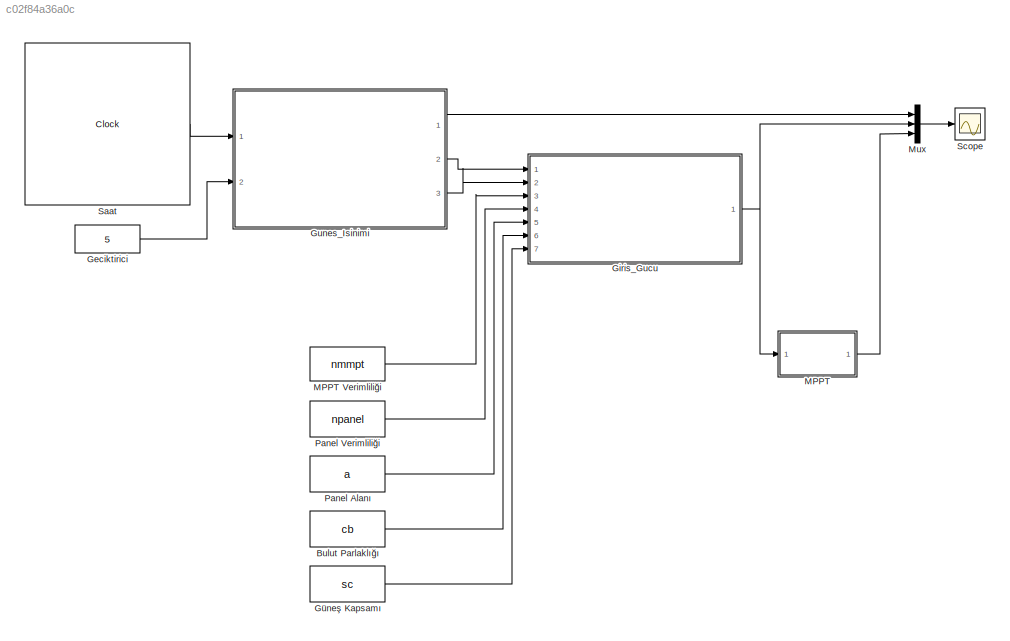
MODEL slx_c02f84a36a0c
KIND model
CONFIG AbsTol = auto
CONFIG EnableMultiTasking = off
CONFIG FixedStep = 0.01
CONFIG MaxStep = auto
CONFIG MinStep = auto
CONFIG RelTol = 1e-3
CONFIG SampleTimeConstraint = Unconstrained
CONFIG Solver = FixedStepAuto
CONFIG SolverName = FixedStepAuto
CONFIG StartTime = 0.0
CONFIG StopTime = 19
WORKSPACE source: mxarray member
WORKSPACE a = 6
WORKSPACE cb = 0.9
WORKSPACE d = 268
WORKSPACE lat = 23.5
WORKSPACE local_meridian = 80
WORKSPACE long = 130
WORKSPACE nmmpt = 0.98
WORKSPACE npanel = 0.25
WORKSPACE sc = 1
WORKSPACE solar_noon = 12.4333333333
BLOCK [Constant] Bulut Parlaklığı
  Value = cb
BLOCK [Constant] Geciktirici
  Value = 5
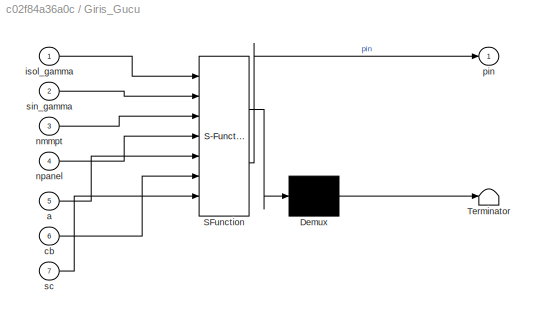
BLOCK [SubSystem] Giris_Gucu
  ErrorFcn = Stateflow.Translate.translate
  PermitHierarchicalResolution = ExplicitOnly
  Ports = [7, 1]
  RequestExecContextInheritance = off
  SFBlockType = MATLAB Function
  TreatAsAtomicUnit = on
BLOCK [Demux] Giris_Gucu/ Demux 
  Outputs = 1
  Ports = [1, 1]
BLOCK [S-Function] Giris_Gucu/ SFunction 
  EnableBusSupport = on
  FunctionName = sf_sfun
  PortCounts = [7 2]
  Ports = [7, 2]
  SFcnIsStateOwnerBlock = off
  SFunctionDeploymentMode = off
  Tag = Stateflow S-Function 1
BLOCK [Terminator] Giris_Gucu/ Terminator 
BLOCK [Inport] Giris_Gucu/a
  Port = 5
BLOCK [Inport] Giris_Gucu/cb
  Port = 6
BLOCK [Inport] Giris_Gucu/isol_gamma
BLOCK [Inport] Giris_Gucu/nmmpt
  Port = 3
BLOCK [Inport] Giris_Gucu/npanel
  Port = 4
BLOCK [Outport] Giris_Gucu/pin
BLOCK [Inport] Giris_Gucu/sc
  Port = 7
BLOCK [Inport] Giris_Gucu/sin_gamma
  Port = 2
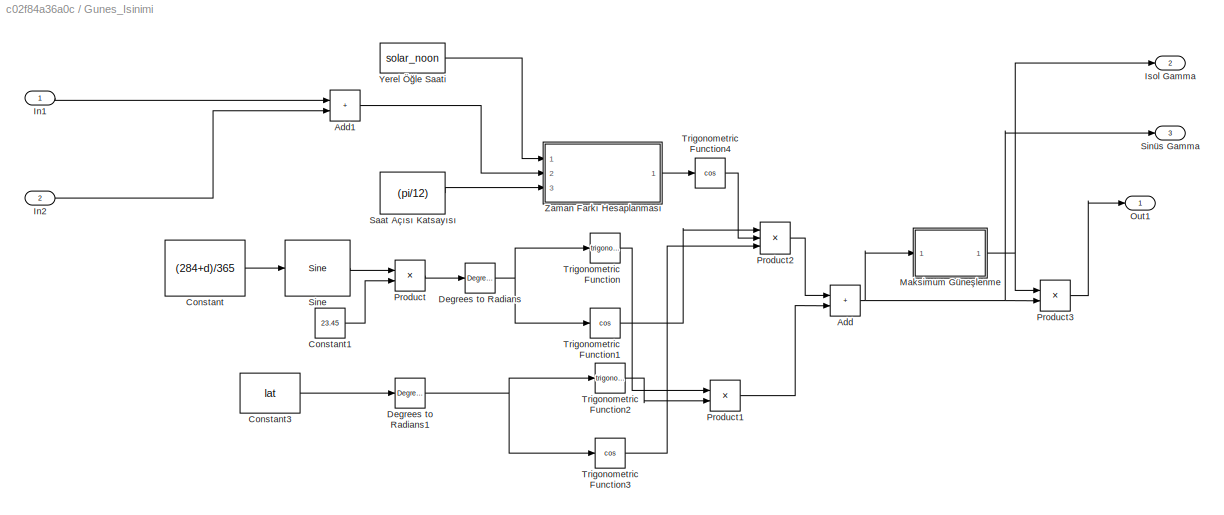
BLOCK [SubSystem] Gunes_Isinimi
  Ports = [2, 3]
  RequestExecContextInheritance = off
BLOCK [Sum] Gunes_Isinimi/Add
  IconShape = rectangular
  Ports = [2, 1]
BLOCK [Sum] Gunes_Isinimi/Add1
  IconShape = rectangular
  Ports = [2, 1]
BLOCK [Constant] Gunes_Isinimi/Constant
  Value = (284+d)/365
BLOCK [Constant] Gunes_Isinimi/Constant1
  Value = 23.45
BLOCK [Constant] Gunes_Isinimi/Constant3
  Value = lat
BLOCK [Reference] Gunes_Isinimi/Degrees to Radians  REF=simulink_extras/Transformations/Degrees to
Radians
  Ports = [1, 1]
  SourceBlock = simulink_extras/Transformations/Degrees to\nRadians
  SourceProductBaseCode = SL
  SourceType = DegreesToRadians
BLOCK [Reference] Gunes_Isinimi/Degrees to Radians1  REF=simulink_extras/Transformations/Degrees to
Radians
  Ports = [1, 1]
  SourceBlock = simulink_extras/Transformations/Degrees to\nRadians
  SourceProductBaseCode = SL
  SourceType = DegreesToRadians
BLOCK [Inport] Gunes_Isinimi/In1
BLOCK [Inport] Gunes_Isinimi/In2
  Port = 2
BLOCK [Outport] Gunes_Isinimi/Isol Gamma
  Port = 2
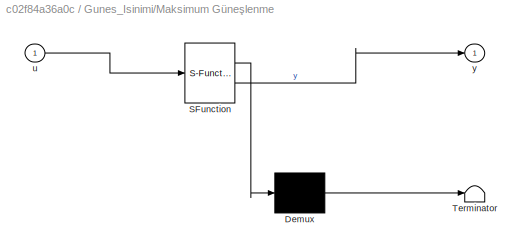
BLOCK [SubSystem] Gunes_Isinimi/Maksimum Güneşlenme
  ErrorFcn = Stateflow.Translate.translate
  PermitHierarchicalResolution = ExplicitOnly
  Ports = [1, 1]
  RequestExecContextInheritance = off
  SFBlockType = MATLAB Function
  TreatAsAtomicUnit = on
BLOCK [Demux] Gunes_Isinimi/Maksimum Güneşlenme/ Demux 
  Outputs = 1
  Ports = [1, 1]
BLOCK [S-Function] Gunes_Isinimi/Maksimum Güneşlenme/ SFunction 
  EnableBusSupport = on
  FunctionName = sf_sfun
  PortCounts = [1 2]
  Ports = [1, 2]
  SFcnIsStateOwnerBlock = off
  SFunctionDeploymentMode = off
  Tag = Stateflow S-Function 4
BLOCK [Terminator] Gunes_Isinimi/Maksimum Güneşlenme/ Terminator 
BLOCK [Inport] Gunes_Isinimi/Maksimum Güneşlenme/u
BLOCK [Outport] Gunes_Isinimi/Maksimum Güneşlenme/y
BLOCK [Outport] Gunes_Isinimi/Out1
BLOCK [Product] Gunes_Isinimi/Product
  Ports = [2, 1]
BLOCK [Product] Gunes_Isinimi/Product1
  Ports = [2, 1]
BLOCK [Product] Gunes_Isinimi/Product2
  Inputs = 3
  Ports = [3, 1]
BLOCK [Product] Gunes_Isinimi/Product3
  Ports = [2, 1]
BLOCK [Constant] Gunes_Isinimi/Saat Açısı Katsayısı
  Value = (pi/12)
BLOCK [Reference] Gunes_Isinimi/Sine  REF=simulink/Lookup
Tables/Sine
  Ports = [1, 1]
  SourceBlock = simulink/Lookup\nTables/Sine
  SourceProductBaseCode = SL
  SourceType = Sine and Cosine
BLOCK [Outport] Gunes_Isinimi/Sinüs Gamma
  Port = 3
BLOCK [Trigonometry] Gunes_Isinimi/Trigonometric Function
  Ports = [1, 1]
BLOCK [Trigonometry] Gunes_Isinimi/Trigonometric Function1
  Operator = cos
  Ports = [1, 1]
BLOCK [Trigonometry] Gunes_Isinimi/Trigonometric Function2
  Ports = [1, 1]
BLOCK [Trigonometry] Gunes_Isinimi/Trigonometric Function3
  Operator = cos
  Ports = [1, 1]
BLOCK [Trigonometry] Gunes_Isinimi/Trigonometric Function4
  Operator = cos
  Ports = [1, 1]
BLOCK [Constant] Gunes_Isinimi/Yerel Öğle Saati
  Value = solar_noon
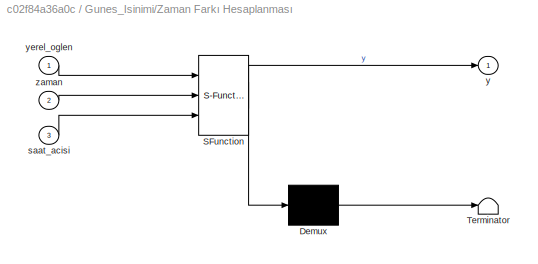
BLOCK [SubSystem] Gunes_Isinimi/Zaman Farkı Hesaplanması
  ErrorFcn = Stateflow.Translate.translate
  PermitHierarchicalResolution = ExplicitOnly
  Ports = [3, 1]
  RequestExecContextInheritance = off
  SFBlockType = MATLAB Function
  TreatAsAtomicUnit = on
BLOCK [Demux] Gunes_Isinimi/Zaman Farkı Hesaplanması/ Demux 
  Outputs = 1
  Ports = [1, 1]
BLOCK [S-Function] Gunes_Isinimi/Zaman Farkı Hesaplanması/ SFunction 
  EnableBusSupport = on
  FunctionName = sf_sfun
  PortCounts = [3 2]
  Ports = [3, 2]
  SFcnIsStateOwnerBlock = off
  SFunctionDeploymentMode = off
  Tag = Stateflow S-Function 2
BLOCK [Terminator] Gunes_Isinimi/Zaman Farkı Hesaplanması/ Terminator 
BLOCK [Inport] Gunes_Isinimi/Zaman Farkı Hesaplanması/saat_acisi
  Port = 3
BLOCK [Outport] Gunes_Isinimi/Zaman Farkı Hesaplanması/y
BLOCK [Inport] Gunes_Isinimi/Zaman Farkı Hesaplanması/yerel_oglen
BLOCK [Inport] Gunes_Isinimi/Zaman Farkı Hesaplanması/zaman
  Port = 2
BLOCK [Constant] Güneş Kapsamı
  Value = sc
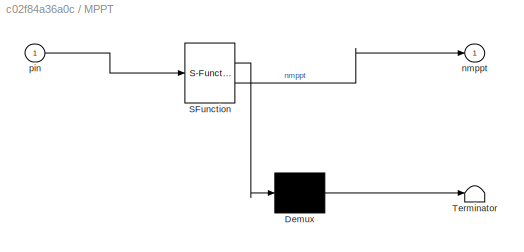
BLOCK [SubSystem] MPPT
  ErrorFcn = Stateflow.Translate.translate
  PermitHierarchicalResolution = ExplicitOnly
  Ports = [1, 1]
  RequestExecContextInheritance = off
  SFBlockType = MATLAB Function
  TreatAsAtomicUnit = on
BLOCK [Constant] MPPT Verimliliği
  Value = nmmpt
BLOCK [Demux] MPPT/ Demux 
  Outputs = 1
  Ports = [1, 1]
BLOCK [S-Function] MPPT/ SFunction 
  EnableBusSupport = on
  FunctionName = sf_sfun
  PortCounts = [1 2]
  Ports = [1, 2]
  SFcnIsStateOwnerBlock = off
  SFunctionDeploymentMode = off
  Tag = Stateflow S-Function 3
BLOCK [Terminator] MPPT/ Terminator 
BLOCK [Outport] MPPT/nmppt
BLOCK [Inport] MPPT/pin
BLOCK [Mux] Mux
  DisplayOption = bar
  Inputs = 3
  Ports = [3, 1]
BLOCK [Constant] Panel Alanı
  Value = a
BLOCK [Constant] Panel Verimliliği
  Value = npanel
BLOCK [Clock] Saat
  Decimation = 5
BLOCK [Scope] Scope
  Floating = off
  NumInputPorts = 1
  Ports = [1]
  ScopeSpecificationString = Simulink.scopes.TimeScopeBlockCfg('CurrentConfiguration', extmgr.ConfigurationSet(extmgr.Configuration('Core','General UI',true),extmgr.Configuration('Core','Source UI',true),extmgr.Configuration('Sources','WiredSimulink',true),extmgr.Configuration('Visuals','Time Domain',true,'SerializedDisplays',{struct('MinYLimReal','-150.34833','MaxYLimReal','1353.13496','YLabelReal','','MinYLimMag',' 0.00000'...<+1503ch>
LINE Bulut Parlaklığı:1 -> Giris_Gucu:6
LINE Geciktirici:1 -> Gunes_Isinimi:2
NET Giris_Gucu:1 -> MPPT:1, Mux:2
LINE Gunes_Isinimi/Add1:1 -> Gunes_Isinimi/Zaman Farkı Hesaplanması:2
NET Gunes_Isinimi/Add:1 -> Gunes_Isinimi/Maksimum Güneşlenme:1, Gunes_Isinimi/Product3:2, Gunes_Isinimi/Sinüs Gamma:1
LINE Gunes_Isinimi/Constant1:1 -> Gunes_Isinimi/Product:2
LINE Gunes_Isinimi/Constant3:1 -> Gunes_Isinimi/Degrees to Radians1:1
LINE Gunes_Isinimi/Constant:1 -> Gunes_Isinimi/Sine:1
NET Gunes_Isinimi/Degrees to Radians1:1 -> Gunes_Isinimi/Trigonometric Function2:1, Gunes_Isinimi/Trigonometric Function3:1
NET Gunes_Isinimi/Degrees to Radians:1 -> Gunes_Isinimi/Trigonometric Function1:1, Gunes_Isinimi/Trigonometric Function:1
LINE Gunes_Isinimi/In1:1 -> Gunes_Isinimi/Add1:1
LINE Gunes_Isinimi/In2:1 -> Gunes_Isinimi/Add1:2
NET Gunes_Isinimi/Maksimum Güneşlenme:1 -> Gunes_Isinimi/Isol Gamma:1, Gunes_Isinimi/Product3:1
LINE Gunes_Isinimi/Product1:1 -> Gunes_Isinimi/Add:2
LINE Gunes_Isinimi/Product2:1 -> Gunes_Isinimi/Add:1
LINE Gunes_Isinimi/Product3:1 -> Gunes_Isinimi/Out1:1
LINE Gunes_Isinimi/Product:1 -> Gunes_Isinimi/Degrees to Radians:1
LINE Gunes_Isinimi/Saat Açısı Katsayısı:1 -> Gunes_Isinimi/Zaman Farkı Hesaplanması:3
LINE Gunes_Isinimi/Sine:1 -> Gunes_Isinimi/Product:1
LINE Gunes_Isinimi/Trigonometric Function1:1 -> Gunes_Isinimi/Product2:1
LINE Gunes_Isinimi/Trigonometric Function2:1 -> Gunes_Isinimi/Product1:2
LINE Gunes_Isinimi/Trigonometric Function3:1 -> Gunes_Isinimi/Product2:3
LINE Gunes_Isinimi/Trigonometric Function4:1 -> Gunes_Isinimi/Product2:2
LINE Gunes_Isinimi/Trigonometric Function:1 -> Gunes_Isinimi/Product1:1
LINE Gunes_Isinimi/Yerel Öğle Saati:1 -> Gunes_Isinimi/Zaman Farkı Hesaplanması:1
LINE Gunes_Isinimi/Zaman Farkı Hesaplanması:1 -> Gunes_Isinimi/Trigonometric Function4:1
LINE Gunes_Isinimi:1 -> Mux:1
LINE Gunes_Isinimi:2 -> Giris_Gucu:1
LINE Gunes_Isinimi:3 -> Giris_Gucu:2
LINE Güneş Kapsamı:1 -> Giris_Gucu:7
LINE MPPT Verimliliği:1 -> Giris_Gucu:3
LINE MPPT:1 -> Mux:3
LINE Mux:1 -> Scope:1
LINE Panel Alanı:1 -> Giris_Gucu:5
LINE Panel Verimliliği:1 -> Giris_Gucu:4
LINE Saat:1 -> Gunes_Isinimi:1
note: NET lines group one-source signal fan-out (src -> all destinations, sorted); 1:1 wires keep LINE
CHART Giris_Gucu states=1 transitions=1
  STATE_LABEL 'eML_blk_kernel()'
  STATE_LABEL 'SCRIPT:\nfunction pin = fcn(isol_gamma,sin_gamma, nmmpt  , npanel, a, cb, sc)\npin=npanel*nmmpt*a*(sc*sin_gamma+(1-sc)*cb)*isol_gamma; \n'
CHART Gunes_Isinimi/Zaman Farkı Hesaplanması states=1 transitions=1
  STATE_LABEL 'eML_blk_kernel()'
  STATE_LABEL 'SCRIPT:\nfunction y = fcn(yerel_oglen, zaman, saat_acisi)\nc1=(zaman - (yerel_oglen));\ny = c1*saat_acisi;\n'
CHART MPPT states=1 transitions=1
  STATE_LABEL 'eML_blk_kernel()'
  STATE_LABEL 'SCRIPT:\nfunction nmppt = fcn(pin)\nnmppt = 100*atan(0.225*pin)-0.003*pin+0.8;\n\n'
CHART Gunes_Isinimi/Maksimum Güneşlenme states=1 transitions=1
  STATE_LABEL 'eML_blk_kernel()'
  STATE_LABEL 'SCRIPT:\nfunction y = fcn(u)\nm=1 ./ u;\nk=1353* 0.687 ^ (power(complex(m),0.678));\nif imag(k)==0\n    y=real(k);\nelse\n    y=0;\nend\n\n\n'
CHART  states=0 transitions=0
CHART  states=0 transitions=0
CHART  states=0 transitions=0
CHART  states=0 transitions=0
